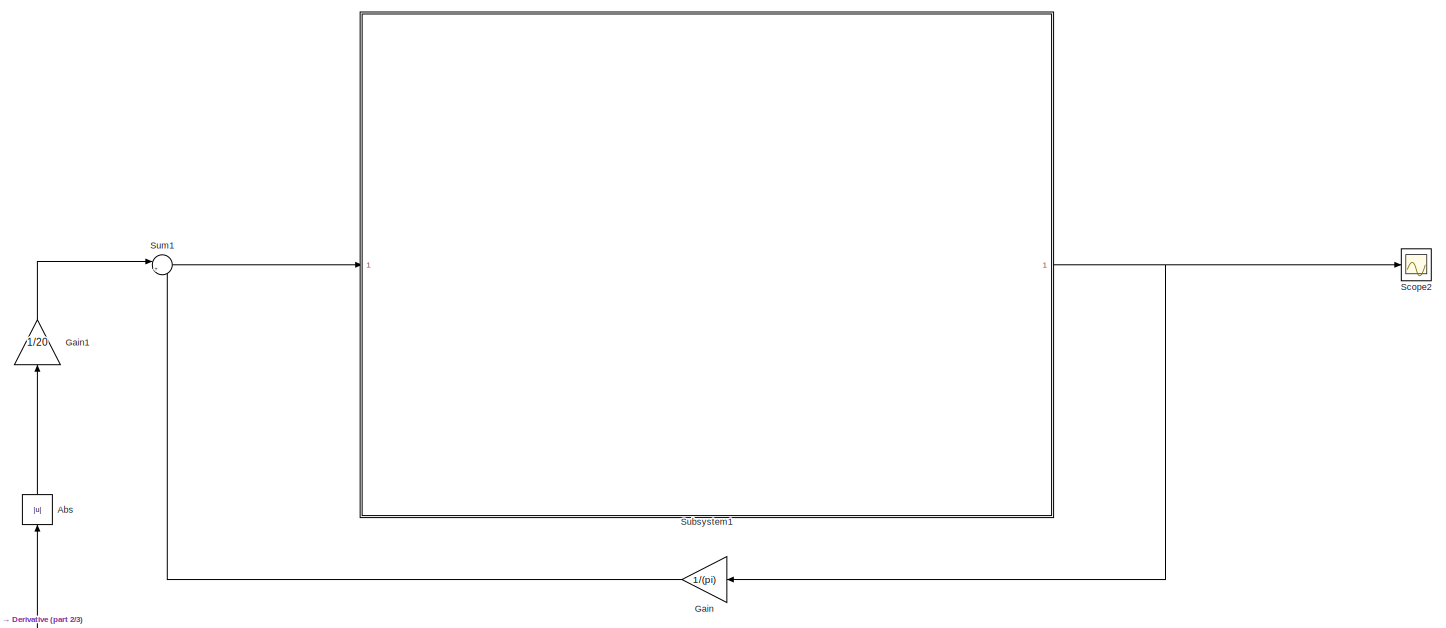
[diagram: root canvas - part 1/3, full width, top band]
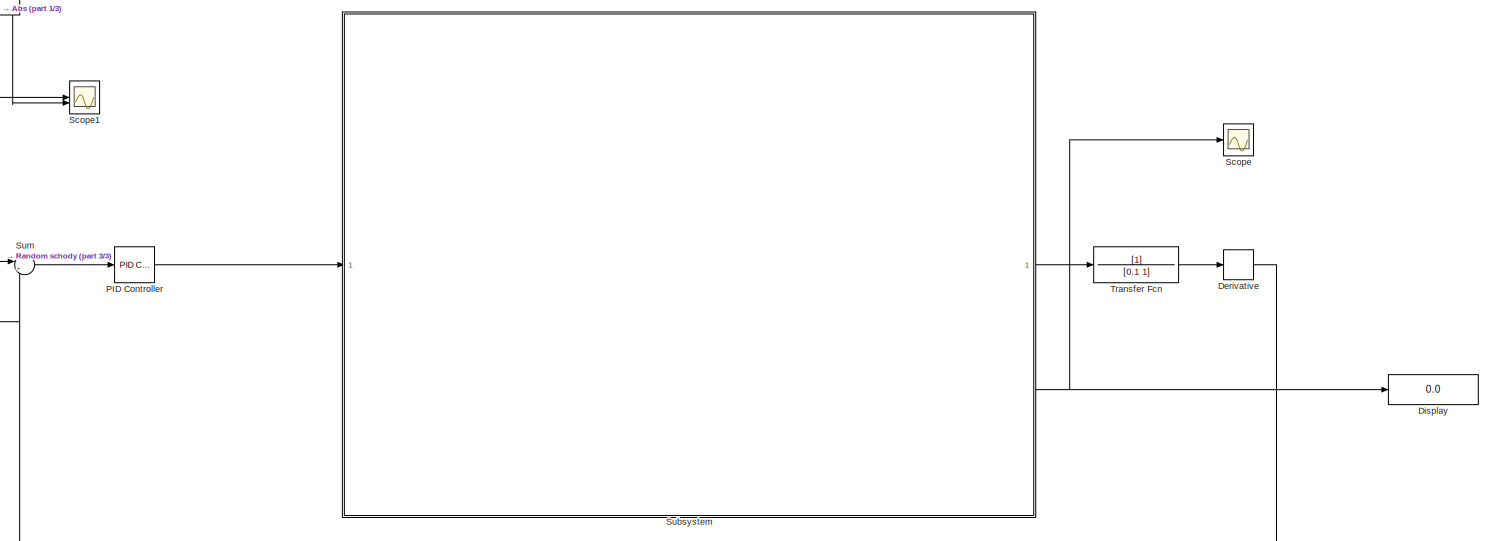
[diagram: root canvas - part 2/3, full width, bottom band]
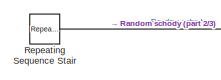
[diagram: root canvas - part 3/3, bottom left region]
MODEL slx_7d60d7e89f2b
KIND model
CONFIG AbsTol = auto
CONFIG EnableMultiTasking = off
CONFIG FixedStep = Ts
CONFIG MaxStep = auto
CONFIG MinStep = auto
CONFIG RelTol = 1e-3
CONFIG SampleTimeConstraint = Unconstrained
CONFIG SolverName = ode5
CONFIG StartTime = 0.0
CONFIG StopTime = inf
BLOCK [Abs] Abs
  NameLocation = right
  SaturateOnIntegerOverflow = off
BLOCK [Derivative] Derivative
BLOCK [Display] Display
  Decimation = 1
BLOCK [Gain] Gain
  Gain = 1/(pi)
  NameLocation = top
BLOCK [Gain] Gain1
  Gain = 1/20
  NameLocation = right
BLOCK [Reference] PID Controller  REF=slpidlib/PID Controller
  LibrarySourceBlock = simulink/Continuous/PID Controller
  SourceBlock = slpidlib/PID Controller
  SourceType = PID 1dof
BLOCK [Reference] Repeating Sequence Stair  REF=simulink/Sources/Repeating
Sequence
Stair
  SourceBlock = simulink/Sources/Repeating\nSequence\nStair
  SourceType = Repeating Sequence Stair
BLOCK [Scope] Scope
  Floating = off
  NumInputPorts = 1
  ScopeSpecificationString = Simulink.scopes.TimeScopeBlockCfg('CurrentConfiguration', extmgr.ConfigurationSet(extmgr.Configuration('Core','General UI',true),extmgr.Configuration('Core','Source UI',true),extmgr.Configuration('Sources','WiredSimulink',true),extmgr.Configuration('Visuals','Time Domain',true,'SerializedDisplays',{struct('MinYLimReal','-1083.45657','MaxYLimReal','1210.17712','YLabelReal','','MinYLimMag','  0.0000...<+1488ch>
BLOCK [Scope] Scope1
  Floating = off
  NumInputPorts = 2
  ScopeSpecificationString = Simulink.scopes.TimeScopeBlockCfg('CurrentConfiguration', extmgr.ConfigurationSet(extmgr.Configuration('Core','General UI',true),extmgr.Configuration('Core','Source UI',true),extmgr.Configuration('Sources','WiredSimulink',true,'DataLoggingVariableName','ScopeData1'),extmgr.Configuration('Visuals','Time Domain',true),extmgr.Configuration('Tools','Plot Navigation',true),extmgr.Configuration('Tools',...<+40ch>
BLOCK [Scope] Scope2
  Floating = off
  NumInputPorts = 1
  ScopeSpecificationString = Simulink.scopes.TimeScopeBlockCfg('CurrentConfiguration', extmgr.ConfigurationSet(extmgr.Configuration('Core','General UI',true),extmgr.Configuration('Core','Source UI',true),extmgr.Configuration('Sources','WiredSimulink',true,'DataLoggingVariableName','ScopeData2'),extmgr.Configuration('Visuals','Time Domain',true,'SerializedDisplays',{struct('MinYLimReal','-1083.45657','MaxYLimReal','1210.17712'...<+1527ch>
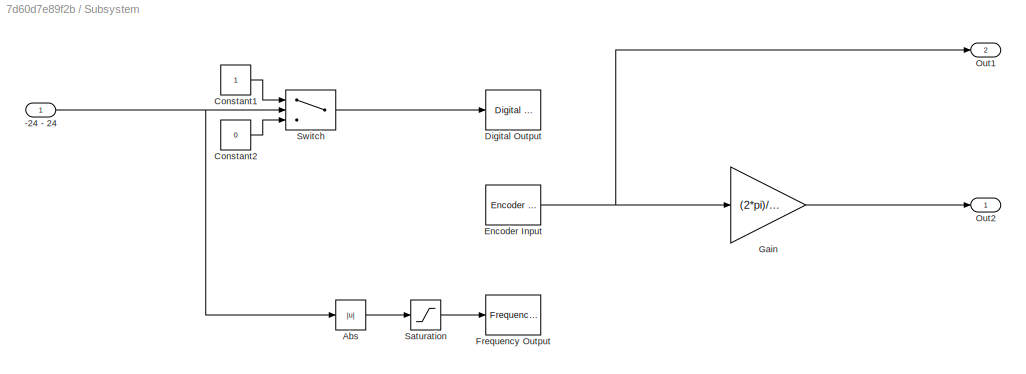
BLOCK [SubSystem] Subsystem
BLOCK [Inport] Subsystem/-24 - 24
BLOCK [Abs] Subsystem/Abs
  SaturateOnIntegerOverflow = off
BLOCK [Constant] Subsystem/Constant1
BLOCK [Constant] Subsystem/Constant2
  Value = 0
BLOCK [Reference] Subsystem/Digital Output  REF=sldrtlib/Digital Output
  AttributesFormatString = Humusoft\nMF624 [auto]
  SourceBlock = sldrtlib/Digital Output
  SourceType = Simulink Desktop Real-Time Digital Output
BLOCK [Reference] Subsystem/Encoder Input  REF=sldrtlib/Encoder Input
  AttributesFormatString = Humusoft\nMF624 [auto]
  SourceBlock = sldrtlib/Encoder Input
  SourceType = Simulink Desktop Real-Time Encoder Input
BLOCK [Reference] Subsystem/Frequency Output  REF=sldrtlib/Frequency Output
  AttributesFormatString = Humusoft\nMF624 [auto]
  SourceBlock = sldrtlib/Frequency Output
  SourceType = Simulink Desktop Real-Time Frequency Output
BLOCK [Gain] Subsystem/Gain
  Gain = (2*pi)/1000
BLOCK [Outport] Subsystem/Out1
  Port = 2
BLOCK [Outport] Subsystem/Out2
BLOCK [Saturate] Subsystem/Saturation
  LowerLimit = 0
  UpperLimit = 1
BLOCK [Switch] Subsystem/Switch
  Criteria = u2 > Threshold
  InputSameDT = off
  SaturateOnIntegerOverflow = off
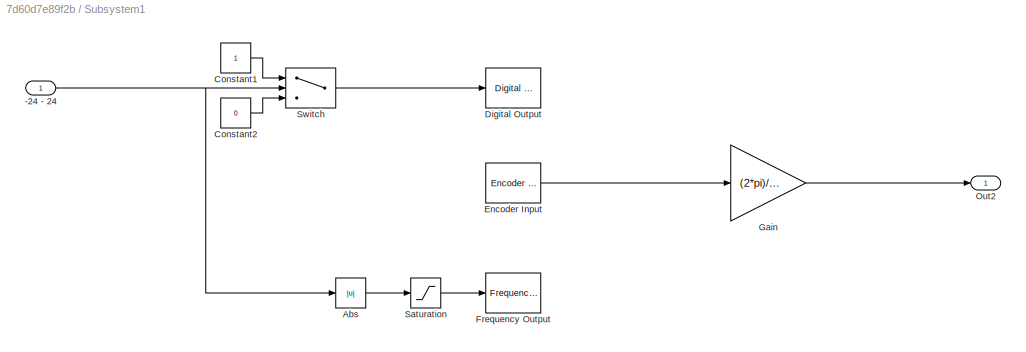
BLOCK [SubSystem] Subsystem1
BLOCK [Inport] Subsystem1/-24 - 24
BLOCK [Abs] Subsystem1/Abs
  SaturateOnIntegerOverflow = off
BLOCK [Constant] Subsystem1/Constant1
BLOCK [Constant] Subsystem1/Constant2
  Value = 0
BLOCK [Reference] Subsystem1/Digital Output  REF=sldrtlib/Digital Output
  AttributesFormatString = Humusoft\nMF624 [auto]
  SourceBlock = sldrtlib/Digital Output
  SourceType = Simulink Desktop Real-Time Digital Output
BLOCK [Reference] Subsystem1/Encoder Input  REF=sldrtlib/Encoder Input
  AttributesFormatString = Humusoft\nMF624 [auto]
  SourceBlock = sldrtlib/Encoder Input
  SourceType = Simulink Desktop Real-Time Encoder Input
BLOCK [Reference] Subsystem1/Frequency Output  REF=sldrtlib/Frequency Output
  AttributesFormatString = Humusoft\nMF624 [auto]
  SourceBlock = sldrtlib/Frequency Output
  SourceType = Simulink Desktop Real-Time Frequency Output
BLOCK [Gain] Subsystem1/Gain
  Gain = (2*pi)/1000
BLOCK [Outport] Subsystem1/Out2
BLOCK [Saturate] Subsystem1/Saturation
  LowerLimit = 0
  UpperLimit = 1
BLOCK [Switch] Subsystem1/Switch
  Criteria = u2 > Threshold
  InputSameDT = off
  SaturateOnIntegerOverflow = off
BLOCK [Sum] Sum
  Inputs = |+-
BLOCK [Sum] Sum1
  Inputs = |+-
BLOCK [TransferFcn] Transfer Fcn
  Denominator = [0.1 1]
LINE Abs:1 -> Gain1:1
NET Derivative:1 -> Abs:1, Scope1:2, Sum:2
LINE Gain1:1 -> Sum1:1
LINE Gain:1 -> Sum1:2
LINE PID Controller:1 -> Subsystem:1
NET Repeating Sequence Stair:1 -> Scope1:1, Sum:1
NET Subsystem/-24 - 24:1 -> Subsystem/Abs:1, Subsystem/Switch:2
LINE Subsystem/Abs:1 -> Subsystem/Saturation:1
LINE Subsystem/Constant1:1 -> Subsystem/Switch:1
LINE Subsystem/Constant2:1 -> Subsystem/Switch:3
NET Subsystem/Encoder Input:1 -> Subsystem/Gain:1, Subsystem/Out1:1
LINE Subsystem/Gain:1 -> Subsystem/Out2:1
LINE Subsystem/Saturation:1 -> Subsystem/Frequency Output:1
LINE Subsystem/Switch:1 -> Subsystem/Digital Output:1
NET Subsystem1/-24 - 24:1 -> Subsystem1/Abs:1, Subsystem1/Switch:2
LINE Subsystem1/Abs:1 -> Subsystem1/Saturation:1
LINE Subsystem1/Constant1:1 -> Subsystem1/Switch:1
LINE Subsystem1/Constant2:1 -> Subsystem1/Switch:3
LINE Subsystem1/Encoder Input:1 -> Subsystem1/Gain:1
LINE Subsystem1/Gain:1 -> Subsystem1/Out2:1
LINE Subsystem1/Saturation:1 -> Subsystem1/Frequency Output:1
LINE Subsystem1/Switch:1 -> Subsystem1/Digital Output:1
NET Subsystem1:1 -> Gain:1, Scope2:1
NET Subsystem:1 -> Scope:1, Transfer Fcn:1
LINE Subsystem:2 -> Display:1
LINE Sum1:1 -> Subsystem1:1
LINE Sum:1 -> PID Controller:1
LINE Transfer Fcn:1 -> Derivative:1
note: NET lines group one-source signal fan-out (src -> all destinations, sorted); 1:1 wires keep LINE
